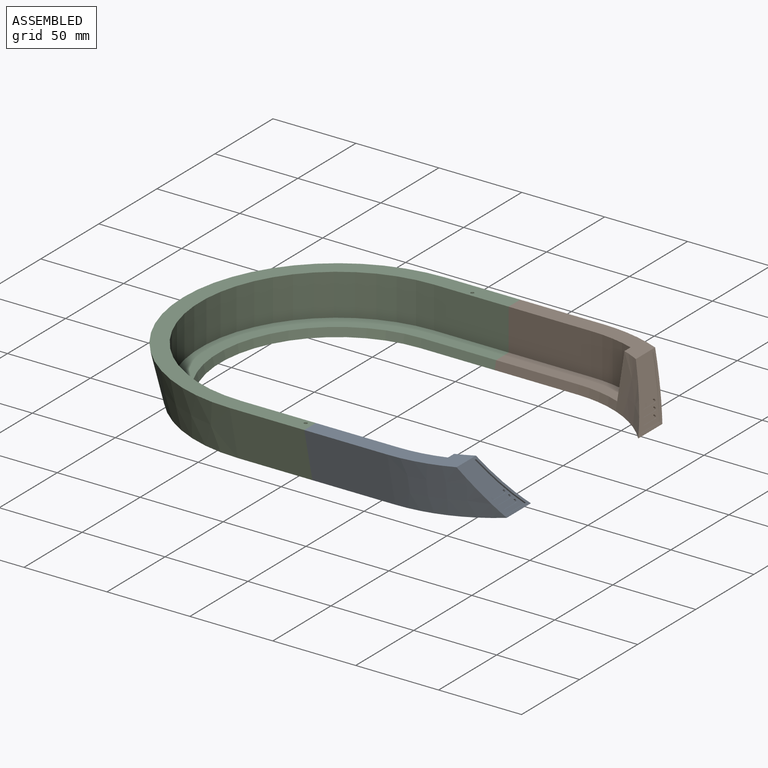
[diagram: assembled view]
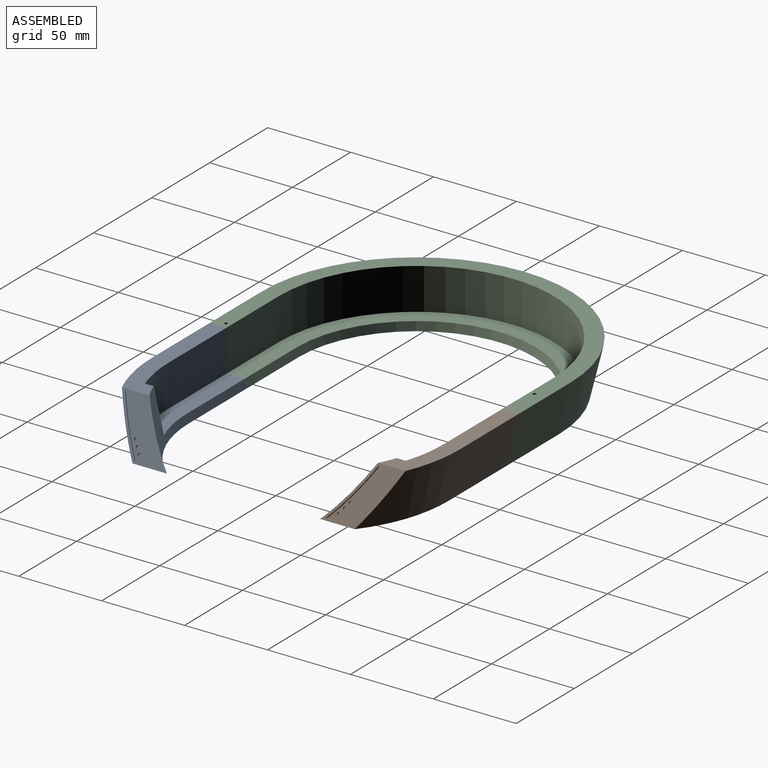
[diagram: assembled view, second angle]
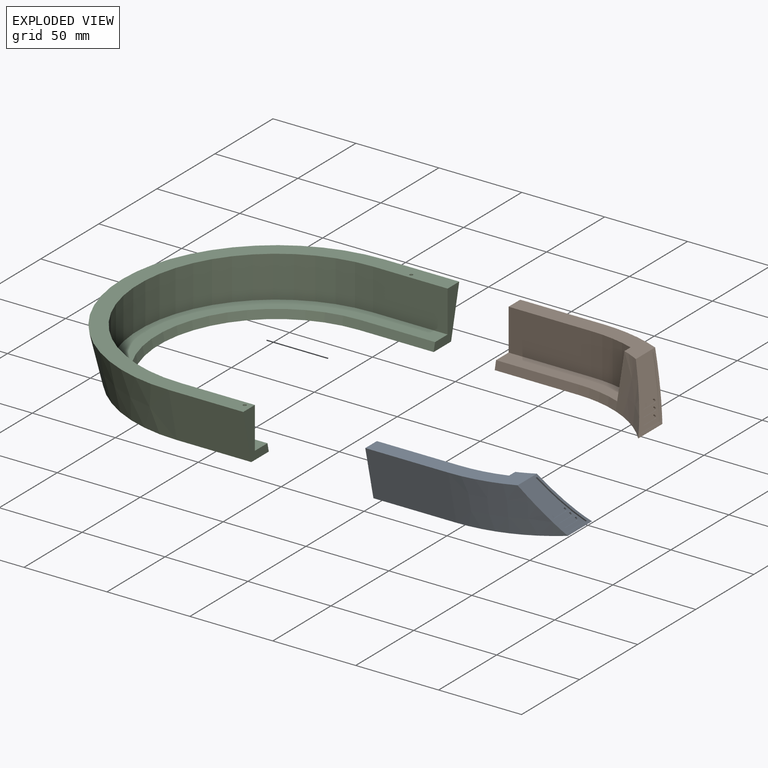
[diagram: exploded view]
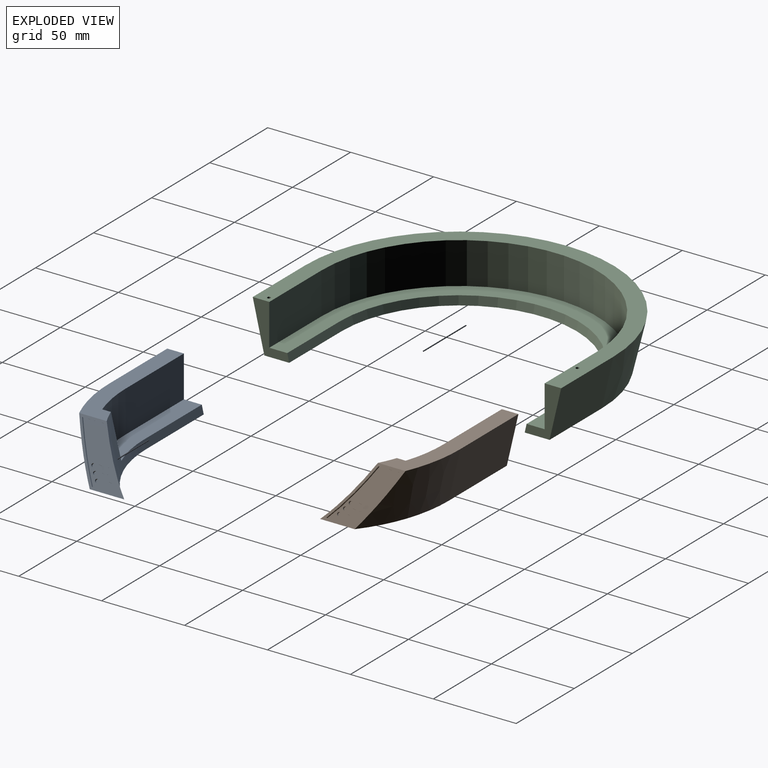
[diagram: exploded view, second angle]
ASSEMBLY  parts=3 mates=2
PART A: 34 faces, bbox 109.3x46.9x30.1 mm
  f0: plane 33.72x27.41mm, normal (0.87,0,0.5), area 396.3mm2, adj f13,f14,f15,f16,f17,f18,f19,f20
  f1: plane 39.31x30mm, normal (0.87,0,0.5), area 166.6mm2, adj f3,f6,f7,f8,f13,f14,f15,f16
  f2: plane 50x5mm, normal (0,0.97,0.23), area 256.7mm2, adj f3,f4,f8,f9
  f3: cone r=71mm half-angle=13.1deg, axis (0,0,1), area 809.9mm2, adj f1,f2,f6,f8,f9,f10
  f4: plane 30x22mm, normal (-1,0,0), area 252.1mm2, adj f2,f5,f6,f8,f9,f12
  f5: plane 50x30mm, normal (0,-0.97,-0.23), area 1540.3mm2, adj f4,f6,f7,f8
  f6: plane 86.6x24.12mm, normal (0,0,1), area 932mm2, adj f1,f3,f4,f5,f7,f10,f11,f12
  f7: cone r=93mm half-angle=13.1deg, axis (0,0,1), area 1466.9mm2, adj f1,f5,f6,f8
  f8: plane 103.92x39.81mm, normal (0,0,-1), area 1643.2mm2, adj f1,f2,f3,f4,f5,f7
  f9: plane 76.6x15.92mm, normal (0,0,1), area 835.9mm2, adj f2,f3,f4,f10,f11,f12
  f10: plane 25.09x11.63mm, normal (-1,0,0), area 210.3mm2, adj f3,f6,f9,f11
  f11: cylinder r=83mm len=26.6mm, axis (0,0,1), area 677mm2, adj f6,f9,f10,f12
  f12: plane 50x25mm, normal (0,1,0), area 1250mm2, adj f4,f6,f9,f11
  f13: extruded ~27.9x20.33mm, area 37.7mm2, adj f0,f1,f14,f18
  f14: plane 16.71x0.87mm, normal (-0.5,0,0.87), area 16.7mm2, adj f0,f1,f13,f15
  f15: extruded ~5x3.46mm, area 6.1mm2, adj f0,f1,f14,f16
  f16: extruded ~23.4x14.09mm, area 29.8mm2, adj f0,f1,f15,f17
  f17: plane 0.87x0.5mm, normal (-0.2,0.92,0.34), area 0mm2, adj f0,f1,f16,f18
  f18: plane 13.39x0.87mm, normal (0.5,0,-0.87), area 13.4mm2, adj f0,f1,f13,f17
  f19: plane 10x0.87mm, normal (0.5,0,-0.87), area 10mm2, adj f0,f21,f28,f29
  f20: plane 10x0.87mm, normal (-0.5,0,0.87), area 10mm2, adj f0,f21,f28,f29
  f21: plane 12x1.73mm, normal (0.87,0,0.5), area 23.1mm2, adj f19,f20,f28,f29
  f22: plane 10x0.87mm, normal (-0.5,0,0.87), area 10mm2, adj f0,f24,f30,f31
  f23: plane 10x0.87mm, normal (0.5,0,-0.87), area 10mm2, adj f0,f24,f30,f31
  f24: plane 12x1.73mm, normal (0.87,0,0.5), area 23.1mm2, adj f22,f23,f30,f31
  f25: plane 10x0.87mm, normal (0.5,0,-0.87), area 10mm2, adj f0,f27,f32,f33
  f26: plane 10x0.87mm, normal (-0.5,0,0.87), area 10mm2, adj f0,f27,f32,f33
  f27: plane 12x1.73mm, normal (0.87,0,0.5), area 23.1mm2, adj f25,f26,f32,f33
  f28: cylinder r=1mm len=2.23mm, axis (-0.87,0,-0.5), area 3.1mm2, adj f0,f19,f20,f21
  f29: cylinder r=1mm len=2.23mm, axis (-0.87,0,-0.5), area 3.1mm2, adj f0,f19,f20,f21
  f30: cylinder r=1mm len=2.23mm, axis (0.87,0,0.5), area 3.1mm2, adj f0,f22,f23,f24
  f31: cylinder r=1mm len=2.23mm, axis (0.87,0,0.5), area 3.1mm2, adj f0,f22,f23,f24
  f32: cylinder r=1mm len=2.23mm, axis (-0.87,0,-0.5), area 3.1mm2, adj f0,f25,f26,f27
  f33: cylinder r=1mm len=2.23mm, axis (-0.87,0,-0.5), area 3.1mm2, adj f0,f25,f26,f27
PART B: 34 faces, bbox 109.3x46.9x30.1 mm
  f0: plane 33.72x27.41mm, normal (0.87,0,0.5), area 396.3mm2, adj f13,f14,f15,f16,f17,f18,f19,f20
  f1: plane 39.31x30mm, normal (0.87,0,0.5), area 166.6mm2, adj f3,f6,f7,f8,f13,f14,f15,f16
  f2: plane 50x5mm, normal (0,-0.97,0.23), area 256.7mm2, adj f3,f4,f8,f9
  f3: cone r=71mm half-angle=13.1deg, axis (0,0,1), area 809.9mm2, adj f1,f2,f6,f8,f9,f10
  f4: plane 30x22mm, normal (-1,0,0), area 252.1mm2, adj f2,f5,f6,f8,f9,f12
  f5: plane 50x30mm, normal (0,0.97,-0.23), area 1540.3mm2, adj f4,f6,f7,f8
  f6: plane 86.6x24.12mm, normal (0,0,1), area 932mm2, adj f1,f3,f4,f5,f7,f10,f11,f12
  f7: cone r=93mm half-angle=13.1deg, axis (0,0,1), area 1466.9mm2, adj f1,f5,f6,f8
  f8: plane 103.92x39.81mm, normal (0,0,-1), area 1643.2mm2, adj f1,f2,f3,f4,f5,f7
  f9: plane 76.6x15.92mm, normal (0,0,1), area 835.9mm2, adj f2,f3,f4,f10,f11,f12
  f10: plane 25.09x11.63mm, normal (-1,0,0), area 210.3mm2, adj f3,f6,f9,f11
  f11: cylinder r=83mm len=26.6mm, axis (0,0,1), area 677mm2, adj f6,f9,f10,f12
  f12: plane 50x25mm, normal (0,-1,0), area 1250mm2, adj f4,f6,f9,f11
  f13: extruded ~27.9x20.33mm, area 37.7mm2, adj f0,f1,f14,f18
  f14: plane 16.71x0.87mm, normal (-0.5,0,0.87), area 16.7mm2, adj f0,f1,f13,f15
  f15: extruded ~5x3.46mm, area 6.1mm2, adj f0,f1,f14,f16
  f16: extruded ~23.4x14.09mm, area 29.8mm2, adj f0,f1,f15,f17
  f17: plane 0.87x0.5mm, normal (-0.2,-0.92,0.34), area 0mm2, adj f0,f1,f16,f18
  f18: plane 13.39x0.87mm, normal (0.5,0,-0.87), area 13.4mm2, adj f0,f1,f13,f17
  f19: plane 10x0.87mm, normal (0.5,0,-0.87), area 10mm2, adj f0,f21,f28,f29
  f20: plane 10x0.87mm, normal (-0.5,0,0.87), area 10mm2, adj f0,f21,f28,f29
  f21: plane 12x1.73mm, normal (0.87,0,0.5), area 23.1mm2, adj f19,f20,f28,f29
  f22: plane 10x0.87mm, normal (-0.5,0,0.87), area 10mm2, adj f0,f24,f30,f31
  f23: plane 10x0.87mm, normal (0.5,0,-0.87), area 10mm2, adj f0,f24,f30,f31
  f24: plane 12x1.73mm, normal (0.87,0,0.5), area 23.1mm2, adj f22,f23,f30,f31
  f25: plane 10x0.87mm, normal (0.5,0,-0.87), area 10mm2, adj f0,f27,f32,f33
  f26: plane 10x0.87mm, normal (-0.5,0,0.87), area 10mm2, adj f0,f27,f32,f33
  f27: plane 12x1.73mm, normal (0.87,0,0.5), area 23.1mm2, adj f25,f26,f32,f33
  f28: cylinder r=1mm len=2.23mm, axis (-0.87,0,-0.5), area 3.1mm2, adj f0,f19,f20,f21
  f29: cylinder r=1mm len=2.23mm, axis (-0.87,0,-0.5), area 3.1mm2, adj f0,f19,f20,f21
  f30: cylinder r=1mm len=2.23mm, axis (0.87,0,0.5), area 3.1mm2, adj f0,f22,f23,f24
  f31: cylinder r=1mm len=2.23mm, axis (0.87,0,0.5), area 3.1mm2, adj f0,f22,f23,f24
  f32: cylinder r=1mm len=2.23mm, axis (-0.87,0,-0.5), area 3.1mm2, adj f0,f25,f26,f27
  f33: cylinder r=1mm len=2.23mm, axis (-0.87,0,-0.5), area 3.1mm2, adj f0,f25,f26,f27
PART C: 18 faces, bbox 138x186x30 mm
  f0: plane 186x138mm, normal (0,0,1), area 3658.3mm2, adj f3,f5,f6,f8,f9,f10,f12,f14
  f1: cone r=71mm half-angle=13.1deg, axis (0,0,1), area 1154.6mm2, adj f2,f4,f7,f17
  f2: plane 45x5mm, normal (0,0.97,0.23), area 231mm2, adj f1,f3,f7,f17
  f3: plane 30x22mm, normal (1,0,0), area 252.1mm2, adj f0,f2,f7,f8,f16,f17
  f4: plane 45x5mm, normal (0,-0.97,0.23), area 231mm2, adj f1,f5,f7,f17
  f5: plane 30x22mm, normal (1,0,0), area 252.1mm2, adj f0,f4,f7,f9,f14,f17
  f6: cone r=93mm half-angle=13.1deg, axis (0,0,1), area 8661.8mm2, adj f0,f7,f8,f9
  f7: plane 172x131mm, normal (0,0,-1), area 5049.2mm2, adj f1,f2,f3,f4,f5,f6,f8,f9
  f8: plane 45x30mm, normal (0,-0.97,-0.23), area 1386.3mm2, adj f0,f3,f6,f7
  f9: plane 45x30mm, normal (0,0.97,-0.23), area 1386.3mm2, adj f0,f5,f6,f7
  f10: cylinder r=1mm len=3mm, axis (0,0,1), area 18.8mm2, adj f0,f11
  f11: plane 2x2mm, normal (0,0,1), area 3.1mm2, adj f10
  f12: cylinder r=1mm len=3mm, axis (0,0,1), area 18.8mm2, adj f0,f13
  f13: plane 2x2mm, normal (0,0,1), area 3.1mm2, adj f12
  f14: plane 45x25mm, normal (0,-1,0), area 1125mm2, adj f0,f5,f15,f17
  f15: cylinder r=83mm len=166mm, axis (0,0,1), area 6518.8mm2, adj f0,f14,f16,f17
  f16: plane 45x25mm, normal (0,1,0), area 1125mm2, adj f0,f3,f15,f17
  f17: plane 166x128mm, normal (0,0,1), area 3615.5mm2, adj f1,f2,f3,f4,f5,f14,f15,f16
PLACE A t=(113.92,190.55,42.3)mm
PLACE B t=(113.92,95.55,42.3)mm
PLACE C t=(18.92,95.55,42.3)mm
MATE fastened B.f4 <-> C.f5  axis (-1,0,0) through (63.92,236.05,-42.67)mm
MATE fastened C.f3 <-> A.f4  axis (1,0,0) through (63.92,50.05,-42.67)mm
